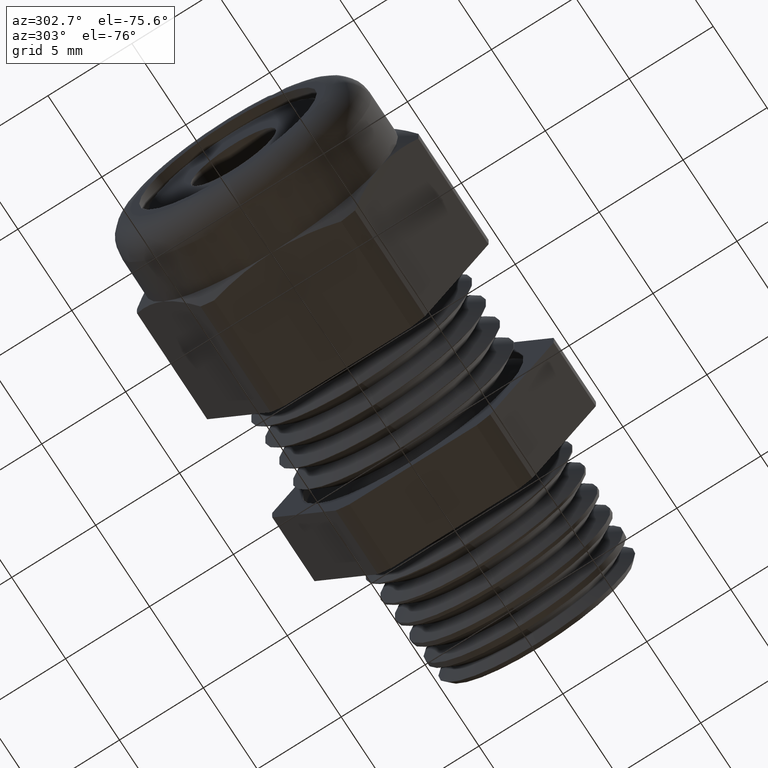
[diagram: clean part render]
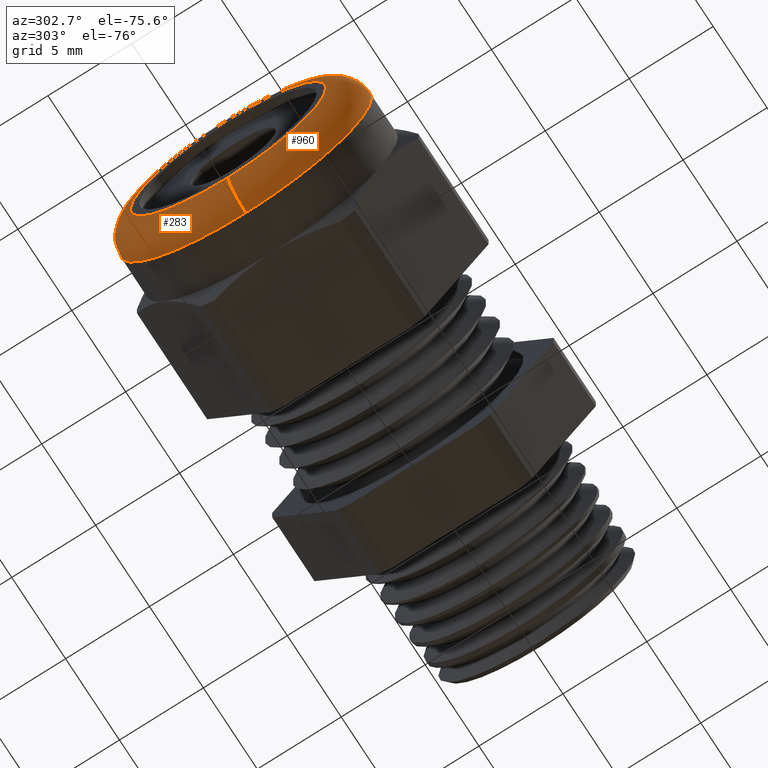
[diagram: same view with one multi-face feature highlighted, each face labeled with its STEP entity id]
A machine part, auxiliary view. The highlighted faces form ONE feature: a constant-radius fillet chain: 2 tangent blend faces with common blend radius 1.6612 mm. The faces share edges in the B-rep.
Their STEP definitions:
[1] entity #283 (Torus):
#277 = VERTEX_POINT ( 'NONE', #1708 ) ;
#278 = ORIENTED_EDGE ( 'NONE', *, *, #484, .T. ) ;
#283 = ADVANCED_FACE ( 'NONE', ( #1705 ), #1700, .T. ) ;
#311 = EDGE_LOOP ( 'NONE', ( #358, #278, #390, #313 ) ) ;
#312 = VERTEX_POINT ( 'NONE', #1939 ) ;
#313 = ORIENTED_EDGE ( 'NONE', *, *, #314, .F. ) ;
#314 = EDGE_CURVE ( 'NONE', #345, #312, #1938, .T. ) ;
#344 = EDGE_CURVE ( 'NONE', #277, #345, #1989, .T. ) ;
#345 = VERTEX_POINT ( 'NONE', #1984 ) ;
#358 = ORIENTED_EDGE ( 'NONE', *, *, #344, .F. ) ;
#390 = ORIENTED_EDGE ( 'NONE', *, *, #391, .F. ) ;
#391 = EDGE_CURVE ( 'NONE', #312, #485, #1847, .T. ) ;
#484 = EDGE_CURVE ( 'NONE', #277, #485, #2260, .T. ) ;
#485 = VERTEX_POINT ( 'NONE', #2255 ) ;
#1696 = DIRECTION ( 'NONE',  ( 0.0000000000000000000, 0.0000000000000000000, -1.000000000000000000 ) ) ;
#1697 = DIRECTION ( 'NONE',  ( 1.000000000000000000, 0.0000000000000000000, 0.0000000000000000000 ) ) ;
#1698 = CARTESIAN_POINT ( 'NONE',  ( -0.7645999999999999500, 0.0000000000000000000, 0.0000000000000000000 ) ) ;
#1699 = AXIS2_PLACEMENT_3D ( 'NONE', #1698, #1697, #1696 ) ;
#1700 = TOROIDAL_SURFACE ( 'NONE', #1699, 0.2295999999999997800, 0.06540000000000002800 ) ;
#1705 = FACE_OUTER_BOUND ( 'NONE', #311, .T. ) ;
#1708 = CARTESIAN_POINT ( 'NONE',  ( -0.8300000000000000700, 3.212248554163504800E-017, 0.2295999999999997800 ) ) ;
#1844 = DIRECTION ( 'NONE',  ( 0.0000000000000000000, 0.0000000000000000000, -1.000000000000000000 ) ) ;
#1845 = DIRECTION ( 'NONE',  ( 1.000000000000000000, 0.0000000000000000000, 0.0000000000000000000 ) ) ;
#1846 = AXIS2_PLACEMENT_3D ( 'NONE', #1853, #1845, #1844 ) ;
#1847 = CIRCLE ( 'NONE', #1846, 0.2949999999999998200 ) ;
#1853 = CARTESIAN_POINT ( 'NONE',  ( -0.7645999999999999500, 0.0000000000000000000, 0.0000000000000000000 ) ) ;
#1934 = DIRECTION ( 'NONE',  ( 0.0000000000000000000, 0.0000000000000000000, -1.000000000000000000 ) ) ;
#1935 = DIRECTION ( 'NONE',  ( 0.0000000000000000000, -1.000000000000000000, 0.0000000000000000000 ) ) ;
#1936 = CARTESIAN_POINT ( 'NONE',  ( -0.7645999999999999500, 0.0000000000000000000, -0.2295999999999997800 ) ) ;
#1937 = AXIS2_PLACEMENT_3D ( 'NONE', #1936, #1935, #1934 ) ;
#1938 = CIRCLE ( 'NONE', #1937, 0.06540000000000004100 ) ;
#1939 = CARTESIAN_POINT ( 'NONE',  ( -0.7645999999999999500, 3.612708057484689500E-017, -0.2949999999999998200 ) ) ;
#1984 = CARTESIAN_POINT ( 'NONE',  ( -0.8300000000000000700, 0.0000000000000000000, -0.2295999999999997800 ) ) ;
#1985 = DIRECTION ( 'NONE',  ( 0.0000000000000000000, 0.0000000000000000000, -1.000000000000000000 ) ) ;
#1986 = DIRECTION ( 'NONE',  ( -1.000000000000000000, 0.0000000000000000000, 0.0000000000000000000 ) ) ;
#1987 = CARTESIAN_POINT ( 'NONE',  ( -0.8300000000000000700, 0.0000000000000000000, 0.0000000000000000000 ) ) ;
#1988 = AXIS2_PLACEMENT_3D ( 'NONE', #1987, #1986, #1985 ) ;
#1989 = CIRCLE ( 'NONE', #1988, 0.2295999999999997800 ) ;
#2255 = CARTESIAN_POINT ( 'NONE',  ( -0.7645999999999999500, 0.0000000000000000000, 0.2949999999999998200 ) ) ;
#2256 = DIRECTION ( 'NONE',  ( 0.0000000000000000000, 1.224646799147352700E-016, 1.000000000000000000 ) ) ;
#2257 = DIRECTION ( 'NONE',  ( 0.0000000000000000000, 1.000000000000000000, -1.224646799147353200E-016 ) ) ;
#2258 = CARTESIAN_POINT ( 'NONE',  ( -0.7645999999999999500, 2.811789050842320700E-017, 0.2295999999999997800 ) ) ;
#2259 = AXIS2_PLACEMENT_3D ( 'NONE', #2258, #2257, #2256 ) ;
#2260 = CIRCLE ( 'NONE', #2259, 0.06540000000000004100 ) ;
[2] entity #960 (Torus):
#277 = VERTEX_POINT ( 'NONE', #1708 ) ;
#312 = VERTEX_POINT ( 'NONE', #1939 ) ;
#314 = EDGE_CURVE ( 'NONE', #345, #312, #1938, .T. ) ;
#345 = VERTEX_POINT ( 'NONE', #1984 ) ;
#484 = EDGE_CURVE ( 'NONE', #277, #485, #2260, .T. ) ;
#485 = VERTEX_POINT ( 'NONE', #2255 ) ;
#629 = EDGE_LOOP ( 'NONE', ( #940, #1048, #938, #1059 ) ) ;
#881 = EDGE_CURVE ( 'NONE', #345, #277, #2883, .T. ) ;
#938 = ORIENTED_EDGE ( 'NONE', *, *, #314, .T. ) ;
#940 = ORIENTED_EDGE ( 'NONE', *, *, #484, .F. ) ;
#951 = EDGE_CURVE ( 'NONE', #485, #312, #3000, .T. ) ;
#960 = ADVANCED_FACE ( 'NONE', ( #3037 ), #3089, .T. ) ;
#1048 = ORIENTED_EDGE ( 'NONE', *, *, #881, .F. ) ;
#1059 = ORIENTED_EDGE ( 'NONE', *, *, #951, .F. ) ;
#1708 = CARTESIAN_POINT ( 'NONE',  ( -0.8300000000000000700, 3.212248554163504800E-017, 0.2295999999999997800 ) ) ;
#1934 = DIRECTION ( 'NONE',  ( 0.0000000000000000000, 0.0000000000000000000, -1.000000000000000000 ) ) ;
#1935 = DIRECTION ( 'NONE',  ( 0.0000000000000000000, -1.000000000000000000, 0.0000000000000000000 ) ) ;
#1936 = CARTESIAN_POINT ( 'NONE',  ( -0.7645999999999999500, 0.0000000000000000000, -0.2295999999999997800 ) ) ;
#1937 = AXIS2_PLACEMENT_3D ( 'NONE', #1936, #1935, #1934 ) ;
#1938 = CIRCLE ( 'NONE', #1937, 0.06540000000000004100 ) ;
#1939 = CARTESIAN_POINT ( 'NONE',  ( -0.7645999999999999500, 3.612708057484689500E-017, -0.2949999999999998200 ) ) ;
#1984 = CARTESIAN_POINT ( 'NONE',  ( -0.8300000000000000700, 0.0000000000000000000, -0.2295999999999997800 ) ) ;
#2255 = CARTESIAN_POINT ( 'NONE',  ( -0.7645999999999999500, 0.0000000000000000000, 0.2949999999999998200 ) ) ;
#2256 = DIRECTION ( 'NONE',  ( 0.0000000000000000000, 1.224646799147352700E-016, 1.000000000000000000 ) ) ;
#2257 = DIRECTION ( 'NONE',  ( 0.0000000000000000000, 1.000000000000000000, -1.224646799147353200E-016 ) ) ;
#2258 = CARTESIAN_POINT ( 'NONE',  ( -0.7645999999999999500, 2.811789050842320700E-017, 0.2295999999999997800 ) ) ;
#2259 = AXIS2_PLACEMENT_3D ( 'NONE', #2258, #2257, #2256 ) ;
#2260 = CIRCLE ( 'NONE', #2259, 0.06540000000000004100 ) ;
#2880 = DIRECTION ( 'NONE',  ( 0.0000000000000000000, 0.0000000000000000000, -1.000000000000000000 ) ) ;
#2881 = DIRECTION ( 'NONE',  ( -1.000000000000000000, 0.0000000000000000000, 0.0000000000000000000 ) ) ;
#2882 = AXIS2_PLACEMENT_3D ( 'NONE', #2888, #2881, #2880 ) ;
#2883 = CIRCLE ( 'NONE', #2882, 0.2295999999999997800 ) ;
#2888 = CARTESIAN_POINT ( 'NONE',  ( -0.8300000000000000700, 0.0000000000000000000, 0.0000000000000000000 ) ) ;
#2997 = DIRECTION ( 'NONE',  ( 0.0000000000000000000, 0.0000000000000000000, -1.000000000000000000 ) ) ;
#2998 = DIRECTION ( 'NONE',  ( 1.000000000000000000, 0.0000000000000000000, 0.0000000000000000000 ) ) ;
#2999 = AXIS2_PLACEMENT_3D ( 'NONE', #3040, #2998, #2997 ) ;
#3000 = CIRCLE ( 'NONE', #2999, 0.2949999999999998200 ) ;
#3037 = FACE_OUTER_BOUND ( 'NONE', #629, .T. ) ;
#3040 = CARTESIAN_POINT ( 'NONE',  ( -0.7645999999999999500, 0.0000000000000000000, 0.0000000000000000000 ) ) ;
#3085 = DIRECTION ( 'NONE',  ( 0.0000000000000000000, 0.0000000000000000000, -1.000000000000000000 ) ) ;
#3086 = DIRECTION ( 'NONE',  ( 1.000000000000000000, 0.0000000000000000000, 0.0000000000000000000 ) ) ;
#3087 = CARTESIAN_POINT ( 'NONE',  ( -0.7645999999999999500, 0.0000000000000000000, 0.0000000000000000000 ) ) ;
#3088 = AXIS2_PLACEMENT_3D ( 'NONE', #3087, #3086, #3085 ) ;
#3089 = TOROIDAL_SURFACE ( 'NONE', #3088, 0.2295999999999997800, 0.06540000000000002800 ) ;